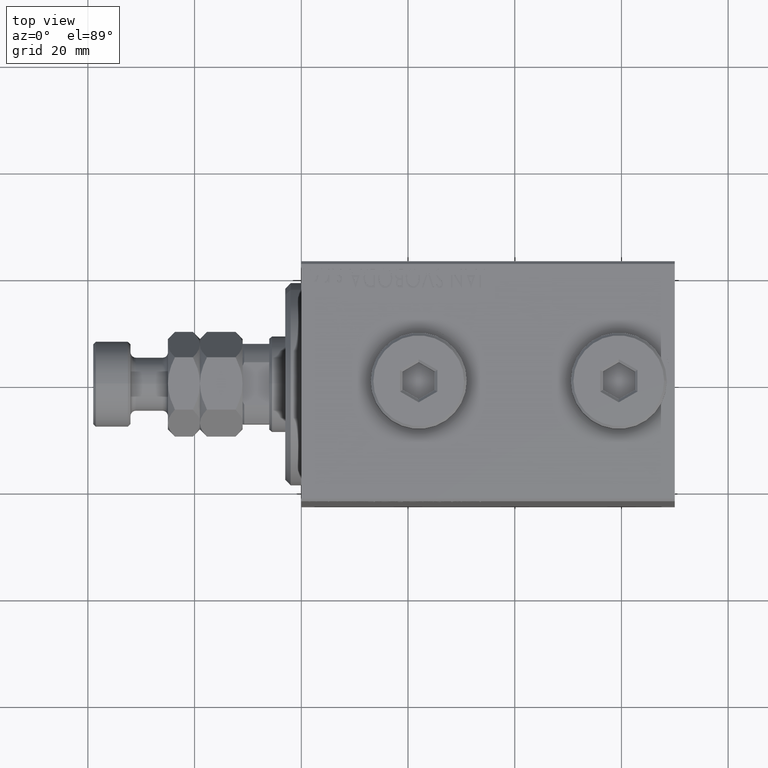
[diagram: clean part render]
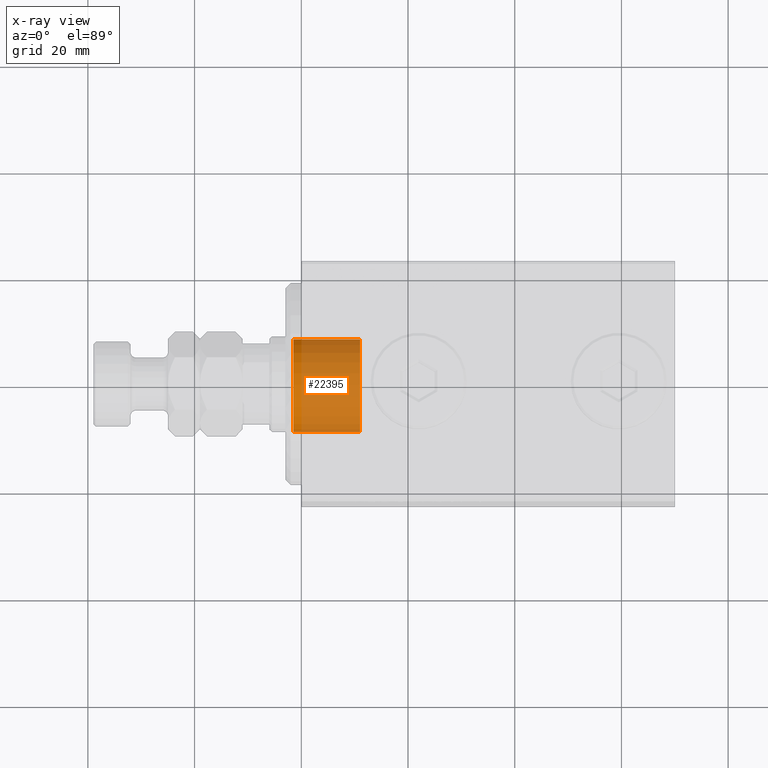
[diagram: x-ray — body ghosted, one internal face saturated and labeled with its STEP entity id]
A machine part, top view, then the same camera in x-ray: the body is ghosted and one INTERNAL B-rep face — a face not visible from any outside direction — is saturated and labeled: STEP entity #22395.
In plain terms, the highlighted cylindrical surface (partial cylindrical patch) has radius 9 mm, axis along (-1, 0, 0).
Its self-contained STEP definition (entity closure, byte-faithful):
#89 = VECTOR ( 'NONE', #44383, 1000.000000000000000 ) ;
#758 = CARTESIAN_POINT ( 'NONE',  ( -11.00000000000000000, 0.000000000000000000, -9.000000000000000000 ) ) ;
#1778 = CYLINDRICAL_SURFACE ( 'NONE', #37438, 9.000000000000000000 ) ;
#1814 = DIRECTION ( 'NONE',  ( 1.000000000000000000, 0.000000000000000000, 0.000000000000000000 ) ) ;
#3766 = DIRECTION ( 'NONE',  ( 0.000000000000000000, 0.000000000000000000, -1.000000000000000000 ) ) ;
#4019 = EDGE_LOOP ( 'NONE', ( #20610, #25113, #4288, #38236 ) ) ;
#4288 = ORIENTED_EDGE ( 'NONE', *, *, #4406, .T. ) ;
#4406 = EDGE_CURVE ( 'NONE', #5643, #18997, #43833, .T. ) ;
#5643 = VERTEX_POINT ( 'NONE', #27002 ) ;
#5997 = AXIS2_PLACEMENT_3D ( 'NONE', #23389, #1814, #40273 ) ;
#6046 = DIRECTION ( 'NONE',  ( 1.000000000000000000, -0.000000000000000000, -0.000000000000000000 ) ) ;
#6406 = AXIS2_PLACEMENT_3D ( 'NONE', #46884, #7560, #3766 ) ;
#7560 = DIRECTION ( 'NONE',  ( 1.000000000000000000, 0.000000000000000000, 0.000000000000000000 ) ) ;
#10293 = DIRECTION ( 'NONE',  ( 0.000000000000000000, 0.000000000000000000, -1.000000000000000000 ) ) ;
#10422 = DIRECTION ( 'NONE',  ( 1.000000000000000000, -0.000000000000000000, -0.000000000000000000 ) ) ;
#13240 = CIRCLE ( 'NONE', #6406, 9.000000000000000000 ) ;
#14220 = EDGE_CURVE ( 'NONE', #24073, #5643, #41306, .T. ) ;
#16240 = CARTESIAN_POINT ( 'NONE',  ( -11.00000000000000000, 0.000000000000000000, 0.000000000000000000 ) ) ;
#17851 = VERTEX_POINT ( 'NONE', #758 ) ;
#18997 = VERTEX_POINT ( 'NONE', #38956 ) ;
#19683 = EDGE_CURVE ( 'NONE', #17851, #18997, #28425, .T. ) ;
#20610 = ORIENTED_EDGE ( 'NONE', *, *, #38012, .F. ) ;
#22395 = ADVANCED_FACE ( 'NONE', ( #44435 ), #1778, .F. ) ;
#23389 = CARTESIAN_POINT ( 'NONE',  ( 1.499999999999999556, 0.000000000000000000, 0.000000000000000000 ) ) ;
#24073 = VERTEX_POINT ( 'NONE', #30520 ) ;
#25113 = ORIENTED_EDGE ( 'NONE', *, *, #14220, .T. ) ;
#27002 = CARTESIAN_POINT ( 'NONE',  ( 1.499999999999999556, 1.102182119232617517E-15, 9.000000000000000000 ) ) ;
#28425 = LINE ( 'NONE', #42868, #38107 ) ;
#29934 = CARTESIAN_POINT ( 'NONE',  ( -11.00000000000000000, 1.102182119232617517E-15, 9.000000000000000000 ) ) ;
#30520 = CARTESIAN_POINT ( 'NONE',  ( -11.00000000000000000, 1.102182119232617517E-15, 9.000000000000000000 ) ) ;
#37438 = AXIS2_PLACEMENT_3D ( 'NONE', #16240, #6046, #10293 ) ;
#38012 = EDGE_CURVE ( 'NONE', #24073, #17851, #13240, .T. ) ;
#38107 = VECTOR ( 'NONE', #10422, 1000.000000000000000 ) ;
#38236 = ORIENTED_EDGE ( 'NONE', *, *, #19683, .F. ) ;
#38956 = CARTESIAN_POINT ( 'NONE',  ( 1.499999999999999556, 0.000000000000000000, -9.000000000000000000 ) ) ;
#40273 = DIRECTION ( 'NONE',  ( 0.000000000000000000, 0.000000000000000000, -1.000000000000000000 ) ) ;
#41306 = LINE ( 'NONE', #29934, #89 ) ;
#42868 = CARTESIAN_POINT ( 'NONE',  ( -11.00000000000000000, 0.000000000000000000, -9.000000000000000000 ) ) ;
#43833 = CIRCLE ( 'NONE', #5997, 9.000000000000000000 ) ;
#44383 = DIRECTION ( 'NONE',  ( 1.000000000000000000, -0.000000000000000000, -0.000000000000000000 ) ) ;
#44435 = FACE_OUTER_BOUND ( 'NONE', #4019, .T. ) ;
#46884 = CARTESIAN_POINT ( 'NONE',  ( -11.00000000000000000, 0.000000000000000000, 0.000000000000000000 ) ) ;